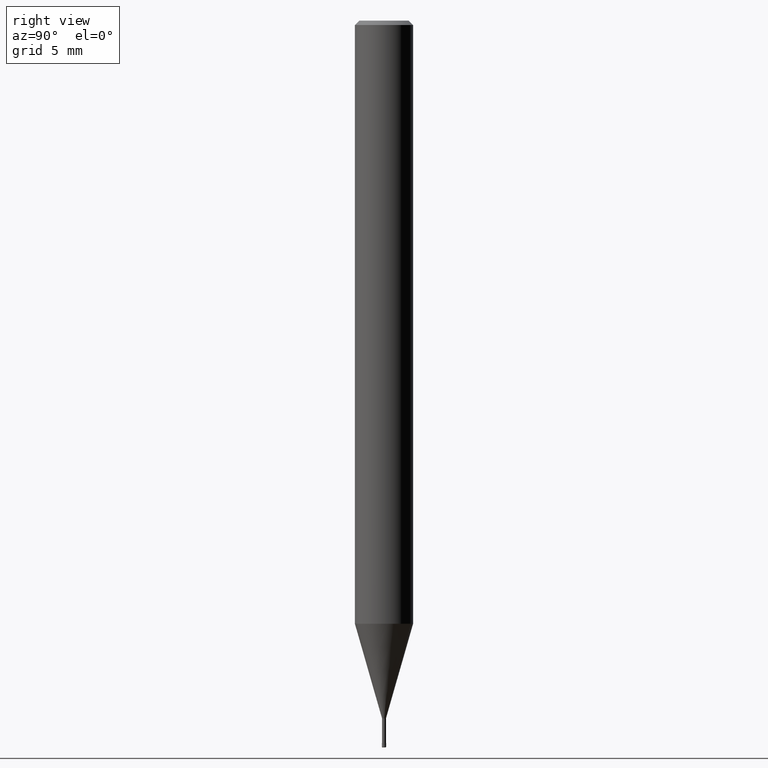
[diagram: clean part render]
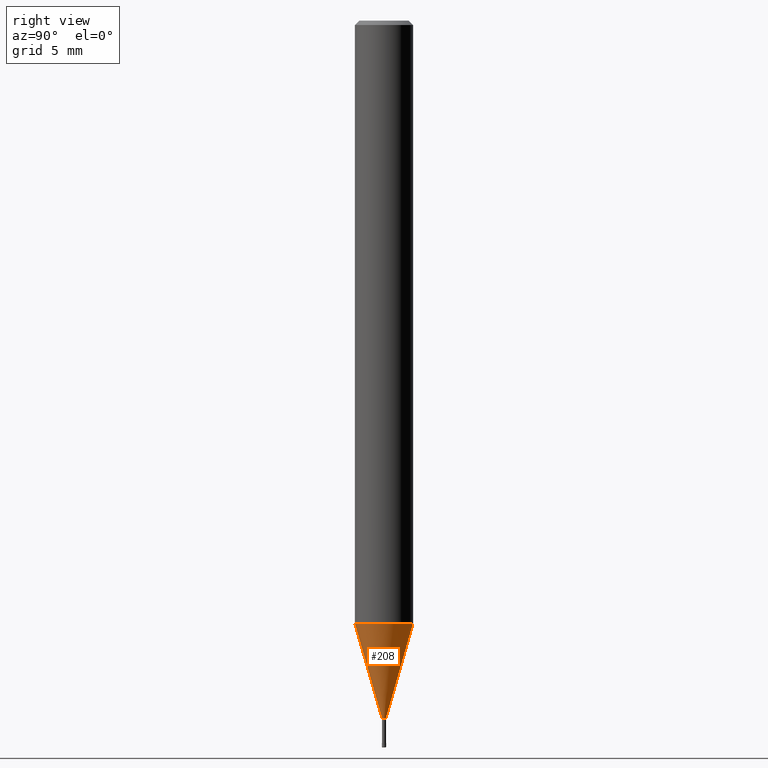
[diagram: same view with one face highlighted and labeled with its STEP entity id]
A machine part, right view. The second image highlights one B-rep face of the part: STEP entity #208.
In plain terms, the highlighted conical surface has half-angle 16 deg.
Its self-contained STEP definition (entity closure, byte-faithful):
#116=EDGE_CURVE('',#198,#200,#273,.T.);
#130=EDGE_CURVE('',#160,#198,#288,.T.);
#136=EDGE_CURVE('',#200,#216,#294,.T.);
#160=VERTEX_POINT('',#321);
#194=EDGE_CURVE('',#160,#216,#360,.T.);
#198=VERTEX_POINT('',#364);
#200=VERTEX_POINT('',#366);
#208=ADVANCED_FACE('',(#377),#378,.T.);
#216=VERTEX_POINT('',#387);
#273=CIRCLE('',#441,0.13495);
#288=LINE('',#461,#462);
#294=LINE('',#468,#469);
#321=CARTESIAN_POINT('',(0.0,1.99995,-41.496));
#360=CIRCLE('',#548,1.99995);
#364=CARTESIAN_POINT('',(0.0,0.13495,-48.0));
#366=CARTESIAN_POINT('',(1.6526062744833E-017,-0.13495,-48.0));
#377=FACE_OUTER_BOUND('',#568,.T.);
#378=CONICAL_SURFACE('',#569,1.06745,0.279253818445948);
#387=CARTESIAN_POINT('',(2.44915147732706E-016,-1.99995,-41.496));
#441=AXIS2_PLACEMENT_3D('',#645,#646,#647);
#461=CARTESIAN_POINT('',(-1.3072060523877E-016,1.06745,-44.748));
#462=VECTOR('',#668,1.0);
#468=CARTESIAN_POINT('',(1.3072060523877E-016,-1.06745,-44.748));
#469=VECTOR('',#670,1.0);
#548=AXIS2_PLACEMENT_3D('',#752,#753,#754);
#568=EDGE_LOOP('',(#776,#777,#778,#779));
#569=AXIS2_PLACEMENT_3D('',#780,#781,#782);
#645=CARTESIAN_POINT('',(0.0,0.0,-48.0));
#646=DIRECTION('',(0.0,0.0,-1.0));
#647=DIRECTION('',(0.0,1.0,0.0));
#668=DIRECTION('',(3.3754859704966E-017,-0.275638449854572,-0.961261382227419));
#670=DIRECTION('',(3.3754859704966E-017,-0.275638449854572,0.961261382227419));
#752=CARTESIAN_POINT('',(0.0,0.0,-41.496));
#753=DIRECTION('',(0.0,0.0,-1.0));
#754=DIRECTION('',(0.0,1.0,0.0));
#776=ORIENTED_EDGE('',*,*,#130,.F.);
#777=ORIENTED_EDGE('',*,*,#194,.T.);
#778=ORIENTED_EDGE('',*,*,#136,.F.);
#779=ORIENTED_EDGE('',*,*,#116,.F.);
#780=CARTESIAN_POINT('',(0.0,0.0,-44.748));
#781=DIRECTION('',(-0.0,-0.0,1.0));
#782=DIRECTION('',(0.0,1.0,0.0));